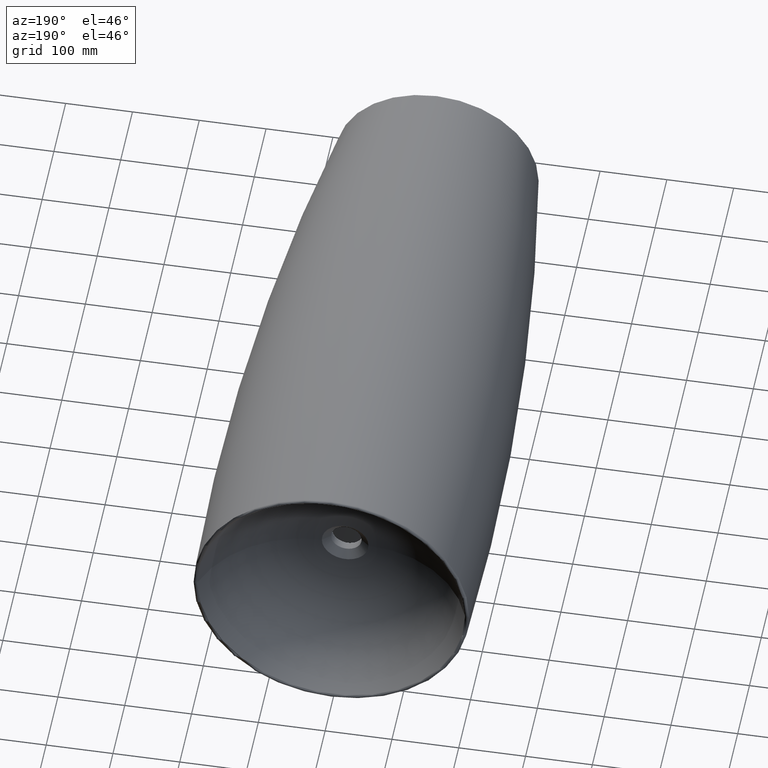
[diagram: clean part render]
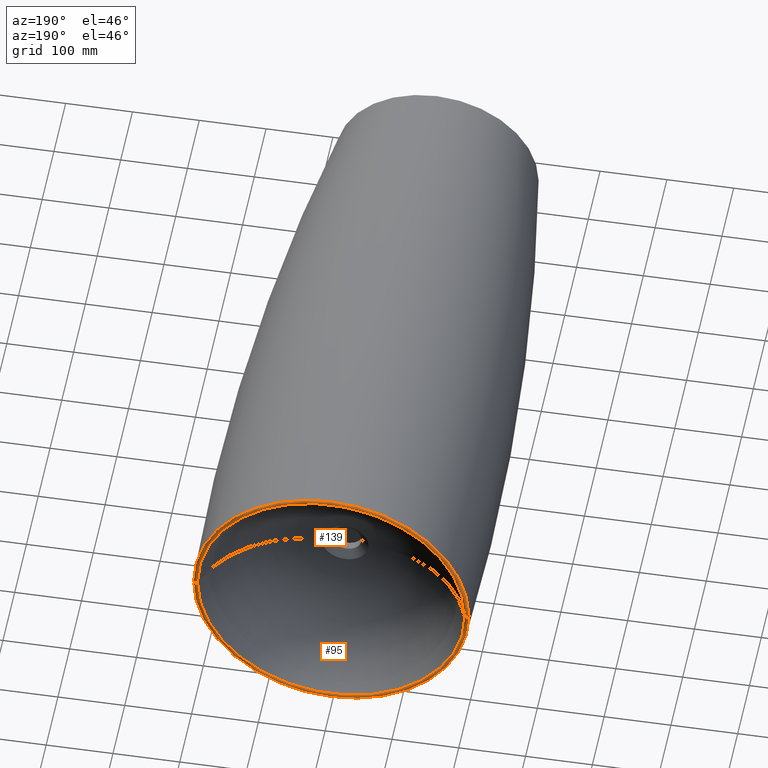
[diagram: same view with one multi-face feature highlighted, each face labeled with its STEP entity id]
A machine part, auxiliary view. The highlighted faces form ONE feature: a constant-radius fillet chain: 2 tangent blend faces with common blend radius 3 mm. The faces share edges in the B-rep.
Their STEP definitions:
[1] entity #139 (Torus):
#17 = AXIS2_PLACEMENT_3D ( 'NONE', #568, #417, #179 ) ;
#59 = VERTEX_POINT ( 'NONE', #353 ) ;
#118 = ORIENTED_EDGE ( 'NONE', *, *, #391, .T. ) ;
#127 = DIRECTION ( 'NONE',  ( 1.000000000000000000, 0.000000000000000000, 1.224646799147356412E-16 ) ) ;
#130 = DIRECTION ( 'NONE',  ( -1.246832498358330099E-16, 1.000000000000000000, -0.000000000000000000 ) ) ;
#139 = ADVANCED_FACE ( 'NONE', ( #291 ), #486, .T. ) ;
#174 = CARTESIAN_POINT ( 'NONE',  ( 203.1241974663282974, 846.9999999999997726, 2.487553982565139829E-14 ) ) ;
#179 = DIRECTION ( 'NONE',  ( -1.000000000000000000, 0.000000000000000000, 0.000000000000000000 ) ) ;
#183 = ORIENTED_EDGE ( 'NONE', *, *, #508, .T. ) ;
#189 = CARTESIAN_POINT ( 'NONE',  ( 206.1215591921063606, 847.1257882539825914, 2.524261076998749186E-14 ) ) ;
#212 = AXIS2_PLACEMENT_3D ( 'NONE', #174, #418, #127 ) ;
#240 = CARTESIAN_POINT ( 'NONE',  ( -203.1241974663284964, 846.9999999999997726, 0.000000000000000000 ) ) ;
#285 = DIRECTION ( 'NONE',  ( 0.000000000000000000, -0.000000000000000000, -1.000000000000000000 ) ) ;
#288 = CIRCLE ( 'NONE', #17, 200.2874928100085583 ) ;
#291 = FACE_OUTER_BOUND ( 'NONE', #516, .T. ) ;
#335 = DIRECTION ( 'NONE',  ( -1.000000000000000000, 0.000000000000000000, 0.000000000000000000 ) ) ;
#350 = AXIS2_PLACEMENT_3D ( 'NONE', #240, #285, #335 ) ;
#353 = CARTESIAN_POINT ( 'NONE',  ( -200.2874928100086720, 847.9762718334632154, 0.000000000000000000 ) ) ;
#374 = VERTEX_POINT ( 'NONE', #594 ) ;
#382 = CIRCLE ( 'NONE', #584, 206.1215591921062753 ) ;
#391 = EDGE_CURVE ( 'NONE', #551, #586, #382, .T. ) ;
#396 = DIRECTION ( 'NONE',  ( -1.246832498358330099E-16, 1.000000000000000000, -0.000000000000000000 ) ) ;
#408 = ORIENTED_EDGE ( 'NONE', *, *, #466, .F. ) ;
#417 = DIRECTION ( 'NONE',  ( -1.246832498358330099E-16, 1.000000000000000000, -0.000000000000000000 ) ) ;
#418 = DIRECTION ( 'NONE',  ( -1.224646799147353207E-16, -1.526929428187426516E-32, 1.000000000000000000 ) ) ;
#421 = CARTESIAN_POINT ( 'NONE',  ( -206.1215591921065879, 847.1257882539825914, 0.000000000000000000 ) ) ;
#425 = DIRECTION ( 'NONE',  ( -1.000000000000000000, -1.246832498358330099E-16, 0.000000000000000000 ) ) ;
#446 = DIRECTION ( 'NONE',  ( -1.000000000000000000, 0.000000000000000000, 0.000000000000000000 ) ) ;
#454 = CARTESIAN_POINT ( 'NONE',  ( -1.056223962992482816E-13, 847.1257882539825914, 0.000000000000000000 ) ) ;
#461 = AXIS2_PLACEMENT_3D ( 'NONE', #608, #130, #425 ) ;
#466 = EDGE_CURVE ( 'NONE', #59, #374, #288, .T. ) ;
#486 = TOROIDAL_SURFACE ( 'NONE', #461, 203.1241974663284111, 3.000000000000093259 ) ;
#508 = EDGE_CURVE ( 'NONE', #586, #374, #538, .T. ) ;
#516 = EDGE_LOOP ( 'NONE', ( #118, #183, #408, #588 ) ) ;
#538 = CIRCLE ( 'NONE', #212, 3.000000000000086153 ) ;
#551 = VERTEX_POINT ( 'NONE', #421 ) ;
#563 = CIRCLE ( 'NONE', #350, 3.000000000000086153 ) ;
#568 = CARTESIAN_POINT ( 'NONE',  ( -1.057284373558699393E-13, 847.9762718334632154, 0.000000000000000000 ) ) ;
#584 = AXIS2_PLACEMENT_3D ( 'NONE', #454, #396, #446 ) ;
#586 = VERTEX_POINT ( 'NONE', #189 ) ;
#588 = ORIENTED_EDGE ( 'NONE', *, *, #599, .F. ) ;
#594 = CARTESIAN_POINT ( 'NONE',  ( 200.2874928100084730, 847.9762718334632154, 2.452814369790254858E-14 ) ) ;
#599 = EDGE_CURVE ( 'NONE', #551, #59, #563, .T. ) ;
#608 = CARTESIAN_POINT ( 'NONE',  ( -1.110223024625156540E-13, 846.9999999999997726, 0.000000000000000000 ) ) ;
[2] entity #95 (Torus):
#5 = EDGE_CURVE ( 'NONE', #586, #551, #496, .T. ) ;
#13 = FACE_OUTER_BOUND ( 'NONE', #319, .T. ) ;
#30 = DIRECTION ( 'NONE',  ( -1.246832498358330099E-16, 1.000000000000000000, -0.000000000000000000 ) ) ;
#59 = VERTEX_POINT ( 'NONE', #353 ) ;
#90 = CIRCLE ( 'NONE', #451, 200.2874928100085583 ) ;
#95 = ADVANCED_FACE ( 'NONE', ( #13 ), #104, .T. ) ;
#104 = TOROIDAL_SURFACE ( 'NONE', #258, 203.1241974663284111, 3.000000000000093259 ) ;
#109 = CARTESIAN_POINT ( 'NONE',  ( -1.110223024625156540E-13, 846.9999999999997726, 0.000000000000000000 ) ) ;
#123 = ORIENTED_EDGE ( 'NONE', *, *, #5, .T. ) ;
#127 = DIRECTION ( 'NONE',  ( 1.000000000000000000, 0.000000000000000000, 1.224646799147356412E-16 ) ) ;
#174 = CARTESIAN_POINT ( 'NONE',  ( 203.1241974663282974, 846.9999999999997726, 2.487553982565139829E-14 ) ) ;
#185 = ORIENTED_EDGE ( 'NONE', *, *, #599, .T. ) ;
#189 = CARTESIAN_POINT ( 'NONE',  ( 206.1215591921063606, 847.1257882539825914, 2.524261076998749186E-14 ) ) ;
#212 = AXIS2_PLACEMENT_3D ( 'NONE', #174, #418, #127 ) ;
#238 = DIRECTION ( 'NONE',  ( -1.246832498358330099E-16, 1.000000000000000000, -0.000000000000000000 ) ) ;
#240 = CARTESIAN_POINT ( 'NONE',  ( -203.1241974663284964, 846.9999999999997726, 0.000000000000000000 ) ) ;
#241 = EDGE_CURVE ( 'NONE', #374, #59, #90, .T. ) ;
#258 = AXIS2_PLACEMENT_3D ( 'NONE', #109, #559, #503 ) ;
#263 = ORIENTED_EDGE ( 'NONE', *, *, #241, .F. ) ;
#285 = DIRECTION ( 'NONE',  ( 0.000000000000000000, -0.000000000000000000, -1.000000000000000000 ) ) ;
#319 = EDGE_LOOP ( 'NONE', ( #532, #123, #185, #263 ) ) ;
#335 = DIRECTION ( 'NONE',  ( -1.000000000000000000, 0.000000000000000000, 0.000000000000000000 ) ) ;
#350 = AXIS2_PLACEMENT_3D ( 'NONE', #240, #285, #335 ) ;
#353 = CARTESIAN_POINT ( 'NONE',  ( -200.2874928100086720, 847.9762718334632154, 0.000000000000000000 ) ) ;
#361 = CARTESIAN_POINT ( 'NONE',  ( -1.057284373558699393E-13, 847.9762718334632154, 0.000000000000000000 ) ) ;
#374 = VERTEX_POINT ( 'NONE', #594 ) ;
#418 = DIRECTION ( 'NONE',  ( -1.224646799147353207E-16, -1.526929428187426516E-32, 1.000000000000000000 ) ) ;
#421 = CARTESIAN_POINT ( 'NONE',  ( -206.1215591921065879, 847.1257882539825914, 0.000000000000000000 ) ) ;
#430 = DIRECTION ( 'NONE',  ( -1.000000000000000000, 0.000000000000000000, 0.000000000000000000 ) ) ;
#451 = AXIS2_PLACEMENT_3D ( 'NONE', #361, #30, #564 ) ;
#496 = CIRCLE ( 'NONE', #605, 206.1215591921062753 ) ;
#503 = DIRECTION ( 'NONE',  ( -1.000000000000000000, -1.246832498358330099E-16, 0.000000000000000000 ) ) ;
#508 = EDGE_CURVE ( 'NONE', #586, #374, #538, .T. ) ;
#527 = CARTESIAN_POINT ( 'NONE',  ( -1.056223962992482816E-13, 847.1257882539825914, 0.000000000000000000 ) ) ;
#532 = ORIENTED_EDGE ( 'NONE', *, *, #508, .F. ) ;
#538 = CIRCLE ( 'NONE', #212, 3.000000000000086153 ) ;
#551 = VERTEX_POINT ( 'NONE', #421 ) ;
#559 = DIRECTION ( 'NONE',  ( -1.246832498358330099E-16, 1.000000000000000000, -0.000000000000000000 ) ) ;
#563 = CIRCLE ( 'NONE', #350, 3.000000000000086153 ) ;
#564 = DIRECTION ( 'NONE',  ( -1.000000000000000000, 0.000000000000000000, 0.000000000000000000 ) ) ;
#586 = VERTEX_POINT ( 'NONE', #189 ) ;
#594 = CARTESIAN_POINT ( 'NONE',  ( 200.2874928100084730, 847.9762718334632154, 2.452814369790254858E-14 ) ) ;
#599 = EDGE_CURVE ( 'NONE', #551, #59, #563, .T. ) ;
#605 = AXIS2_PLACEMENT_3D ( 'NONE', #527, #238, #430 ) ;